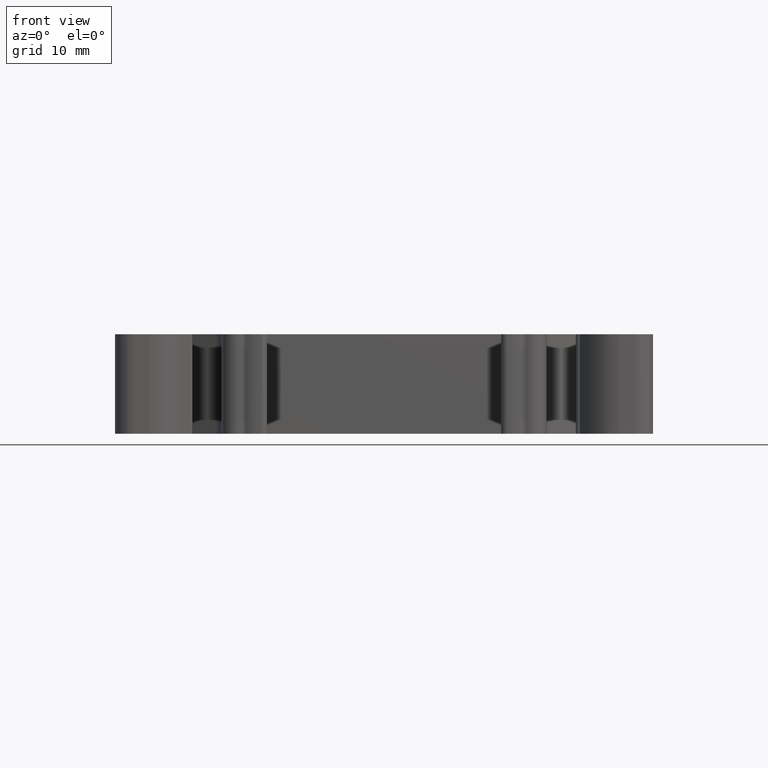
[diagram: clean part render]
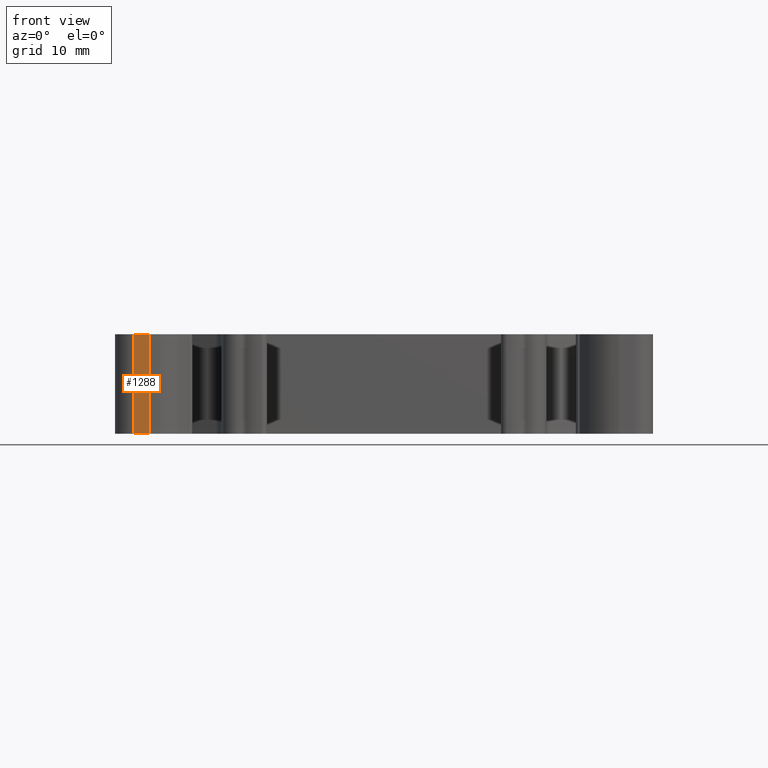
[diagram: same view with one face highlighted and labeled with its STEP entity id]
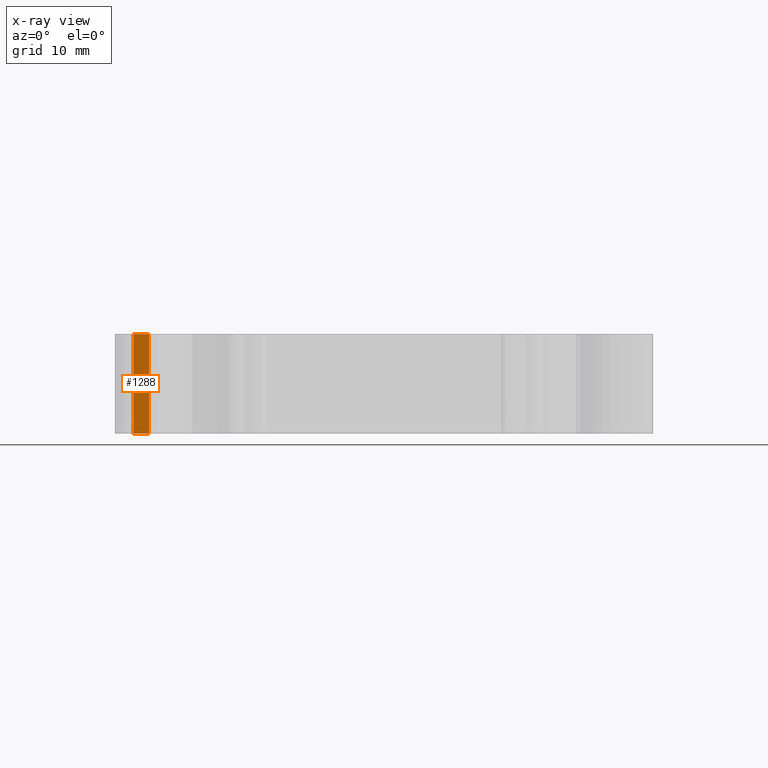
[diagram: x-ray of the same camera — body ghosted, the highlighted face saturated]
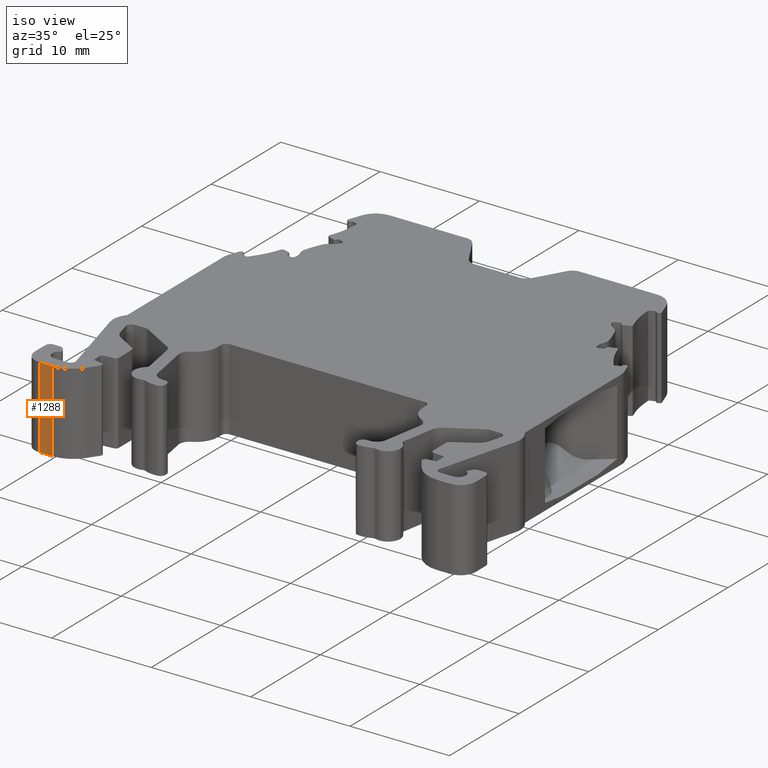
[diagram: same view with one face highlighted and labeled with its STEP entity id]
A machine part, front view. The second image highlights one B-rep face of the part: STEP entity #1288.
The next image is the same camera in x-ray: the body ghosted, the highlighted face saturated — about 0% of this face is hidden behind the body in this view.
A second angle (iso view) of the same face is appended — the face is thin or edge-on in the first view.
In plain terms, the highlighted planar face has unit normal (-0, 1, -0).
Its self-contained STEP definition (entity closure, byte-faithful):
#1288 = ADVANCED_FACE ( 'NONE', ( #2598 ), #2568, .F. ) ;
#1395 = EDGE_CURVE ( 'NONE', #11032, #11033, #2975, .T. ) ;
#1404 = EDGE_CURVE ( 'NONE', #11494, #11032, #2993, .T. ) ;
#1410 = EDGE_CURVE ( 'NONE', #11033, #11706, #3011, .T. ) ;
#2564 = DIRECTION ( 'NONE',  ( -1.000000000000000000, -2.078975225693250100E-014, 0.0000000000000000000 ) ) ;
#2568 = PLANE ( 'NONE',  #9000 ) ;
#2581 = DIRECTION ( 'NONE',  ( -2.078975225693250100E-014, 1.000000000000000000, -4.378536303575530300E-030 ) ) ;
#2598 = FACE_OUTER_BOUND ( 'NONE', #7497, .T. ) ;
#2610 = CARTESIAN_POINT ( 'NONE',  ( 1440.822182837032000, 917.4718341679130200, -3.335584383726589900 ) ) ;
#2947 = CARTESIAN_POINT ( 'NONE',  ( 1441.684277564590500, 917.4718341679131300, -2.935584425860235900 ) ) ;
#2964 = DIRECTION ( 'NONE',  ( -1.000000000000000000, 0.0000000000000000000, -3.944304526105060400E-030 ) ) ;
#2975 = LINE ( 'NONE', #2947, #9079 ) ;
#2990 = DIRECTION ( 'NONE',  ( -2.106103165378144700E-016, -0.0000000000000000000, 1.000000000000000000 ) ) ;
#2993 = LINE ( 'NONE', #3024, #9123 ) ;
#3002 = DIRECTION ( 'NONE',  ( 2.106103165378144700E-016, -0.0000000000000000000, -1.000000000000000000 ) ) ;
#3011 = LINE ( 'NONE', #3017, #9083 ) ;
#3017 = CARTESIAN_POINT ( 'NONE',  ( 1439.513525942429900, 917.4718341679131300, 25.81457739664375600 ) ) ;
#3024 = CARTESIAN_POINT ( 'NONE',  ( 1440.822182837032000, 917.4718341679132400, -3.335584383726589900 ) ) ;
#6095 = CARTESIAN_POINT ( 'NONE',  ( 1439.513525942429900, 917.4718341679131300, -2.935584425860236800 ) ) ;
#6176 = CARTESIAN_POINT ( 'NONE',  ( 1440.822182837032000, 917.4718341679131300, -2.935584425860235900 ) ) ;
#6914 = LINE ( 'NONE', #6932, #7762 ) ;
#6924 = DIRECTION ( 'NONE',  ( 1.000000000000000000, 0.0000000000000000000, -0.0000000000000000000 ) ) ;
#6932 = CARTESIAN_POINT ( 'NONE',  ( 1442.757947288439900, 917.4718341679131300, 5.263821926006720300 ) ) ;
#7497 = EDGE_LOOP ( 'NONE', ( #10271, #10238, #10289, #10272 ) ) ;
#7762 = VECTOR ( 'NONE', #6924, 1000.000000000000000 ) ;
#8308 = CARTESIAN_POINT ( 'NONE',  ( 1440.822182837032000, 917.4718341679131300, 5.263821926006721200 ) ) ;
#8506 = CARTESIAN_POINT ( 'NONE',  ( 1439.513525942429900, 917.4718341679131300, 5.263821926006721200 ) ) ;
#9000 = AXIS2_PLACEMENT_3D ( 'NONE', #2610, #2581, #2564 ) ;
#9079 = VECTOR ( 'NONE', #2964, 1000.000000000000000 ) ;
#9083 = VECTOR ( 'NONE', #2990, 1000.000000000000000 ) ;
#9123 = VECTOR ( 'NONE', #3002, 1000.000000000000000 ) ;
#10238 = ORIENTED_EDGE ( 'NONE', *, *, #1395, .F. ) ;
#10271 = ORIENTED_EDGE ( 'NONE', *, *, #1410, .F. ) ;
#10272 = ORIENTED_EDGE ( 'NONE', *, *, #11194, .F. ) ;
#10289 = ORIENTED_EDGE ( 'NONE', *, *, #1404, .F. ) ;
#11032 = VERTEX_POINT ( 'NONE', #6176 ) ;
#11033 = VERTEX_POINT ( 'NONE', #6095 ) ;
#11194 = EDGE_CURVE ( 'NONE', #11706, #11494, #6914, .T. ) ;
#11494 = VERTEX_POINT ( 'NONE', #8308 ) ;
#11706 = VERTEX_POINT ( 'NONE', #8506 ) ;